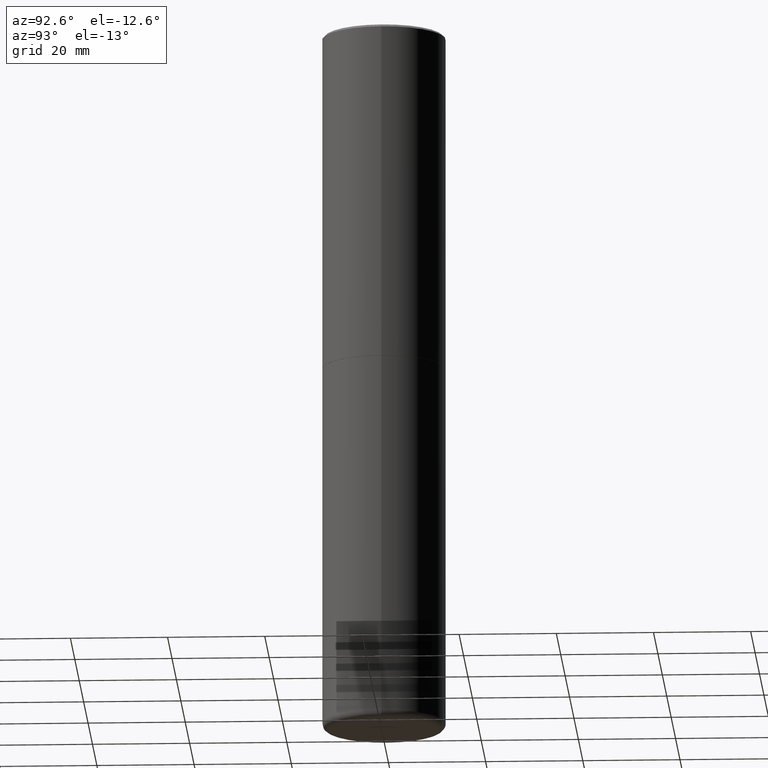
[diagram: clean part render]
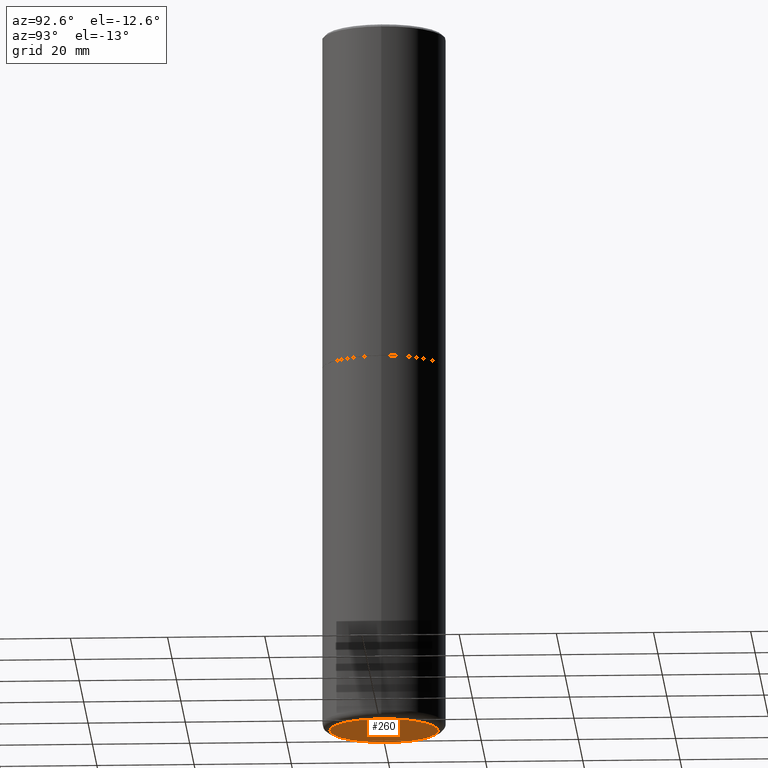
[diagram: same view with one face highlighted and labeled with its STEP entity id]
A machine part, auxiliary view. The second image highlights one B-rep face of the part: STEP entity #260.
In plain terms, the highlighted planar face has unit normal (0, -0, -1).
Its self-contained STEP definition (entity closure, byte-faithful):
#7 = CIRCLE ( 'NONE', #156, 0.4400000000000000022 ) ;
#71 = DIRECTION ( 'NONE',  ( 2.438088387897960049E-29, -3.491481338843145188E-15, -1.000000000000000000 ) ) ;
#125 = FACE_OUTER_BOUND ( 'NONE', #160, .T. ) ;
#156 = AXIS2_PLACEMENT_3D ( 'NONE', #244, #309, #247 ) ;
#160 = EDGE_LOOP ( 'NONE', ( #303, #388 ) ) ;
#192 = CARTESIAN_POINT ( 'NONE',  ( 0.4400000000000000022, -2.314852127653004609E-14, -5.750000000000000888 ) ) ;
#204 = AXIS2_PLACEMENT_3D ( 'NONE', #342, #347, #246 ) ;
#214 = EDGE_CURVE ( 'NONE', #404, #336, #7, .T. ) ;
#219 = EDGE_CURVE ( 'NONE', #336, #404, #236, .T. ) ;
#222 = CARTESIAN_POINT ( 'NONE',  ( -0.4400000000000000022, -1.663172240011032058E-14, -5.750000000000000888 ) ) ;
#236 = CIRCLE ( 'NONE', #204, 0.4400000000000000022 ) ;
#244 = CARTESIAN_POINT ( 'NONE',  ( 1.406144563556453767E-28, -2.007601769834809252E-14, -5.750000000000000888 ) ) ;
#246 = DIRECTION ( 'NONE',  ( 1.000000000000000000, -6.982962677686262766E-15, 0.000000000000000000 ) ) ;
#247 = DIRECTION ( 'NONE',  ( 1.000000000000000000, -6.982962677686262766E-15, 0.000000000000000000 ) ) ;
#260 = ADVANCED_FACE ( 'NONE', ( #125 ), #416, .T. ) ;
#287 = DIRECTION ( 'NONE',  ( -1.000000000000000000, 6.982962677686265922E-15, -4.876176775795935793E-29 ) ) ;
#303 = ORIENTED_EDGE ( 'NONE', *, *, #214, .F. ) ;
#309 = DIRECTION ( 'NONE',  ( -2.445468806185136597E-29, 3.491481338843145583E-15, 1.000000000000000000 ) ) ;
#336 = VERTEX_POINT ( 'NONE', #222 ) ;
#342 = CARTESIAN_POINT ( 'NONE',  ( 1.406144563556453767E-28, -2.007601769834809252E-14, -5.750000000000000888 ) ) ;
#347 = DIRECTION ( 'NONE',  ( -2.445468806185136597E-29, 3.491481338843145583E-15, 1.000000000000000000 ) ) ;
#353 = CARTESIAN_POINT ( 'NONE',  ( 4.089694968291764333E-29, -3.435613221068401065E-14, -5.750000000000000888 ) ) ;
#388 = ORIENTED_EDGE ( 'NONE', *, *, #219, .F. ) ;
#404 = VERTEX_POINT ( 'NONE', #192 ) ;
#408 = AXIS2_PLACEMENT_3D ( 'NONE', #353, #71, #287 ) ;
#416 = PLANE ( 'NONE',  #408 ) ;